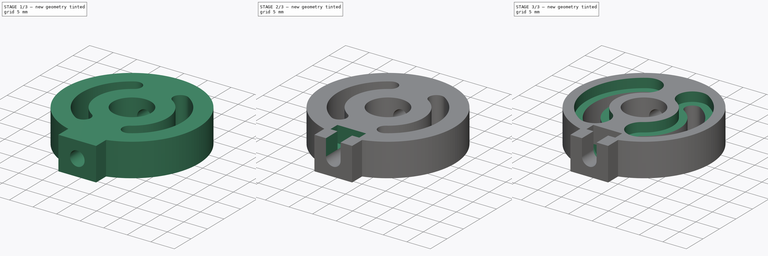
[diagram: build sequence overview — one tinted view per stage of 3, left to right]
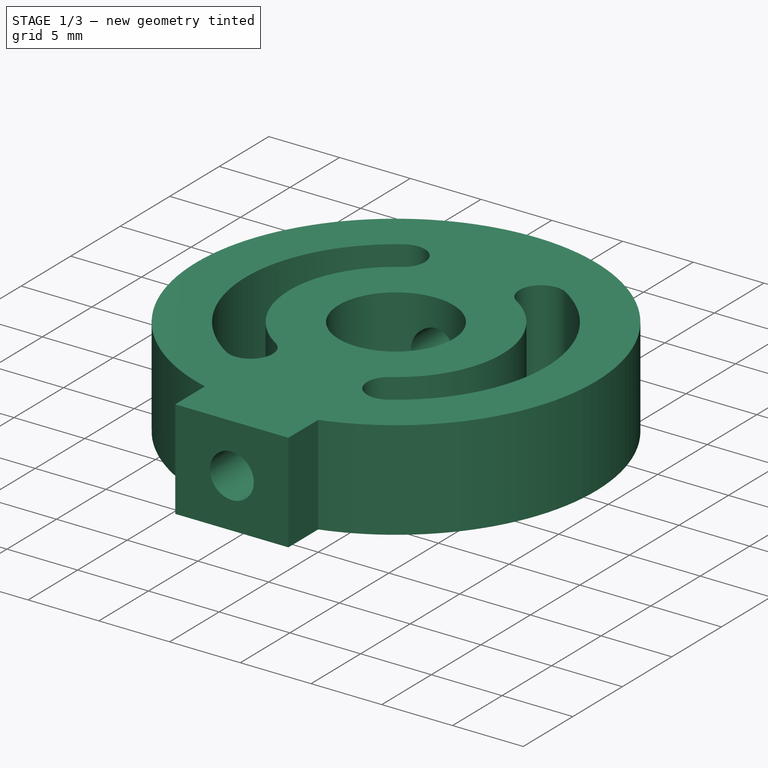
[diagram: stage 1 of 3 — iso view after this stage's code; geometry added in this stage tinted green]
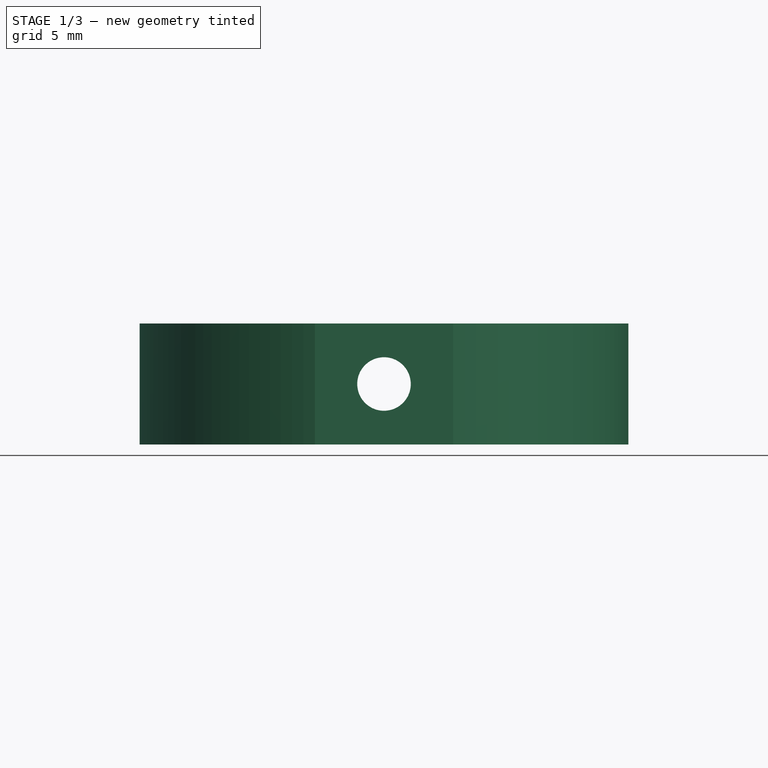
[diagram: stage 1 of 3 — front view after this stage's code; geometry added in this stage tinted green]
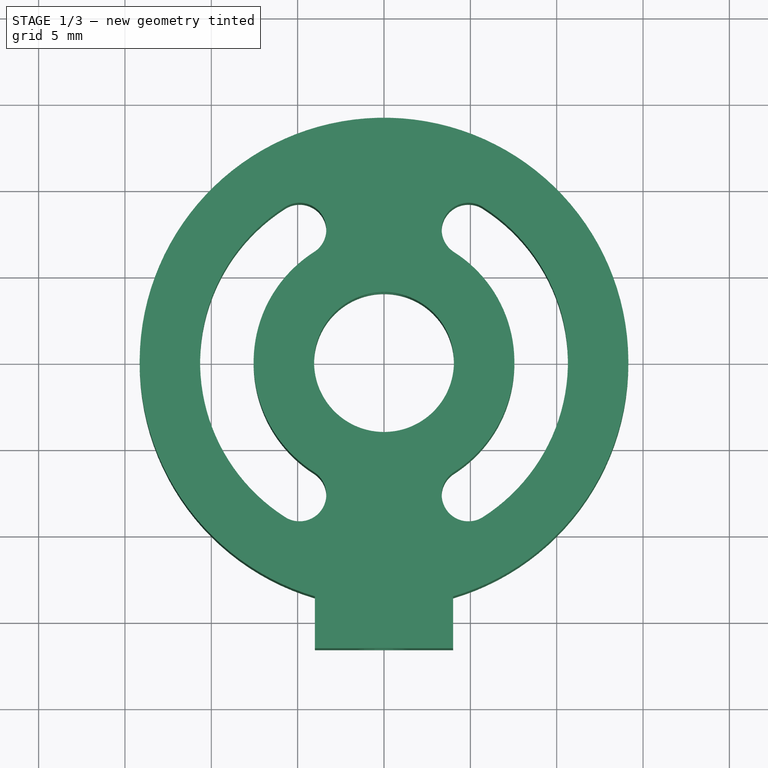
[diagram: stage 1 of 3 — top view after this stage's code; geometry added in this stage tinted green]
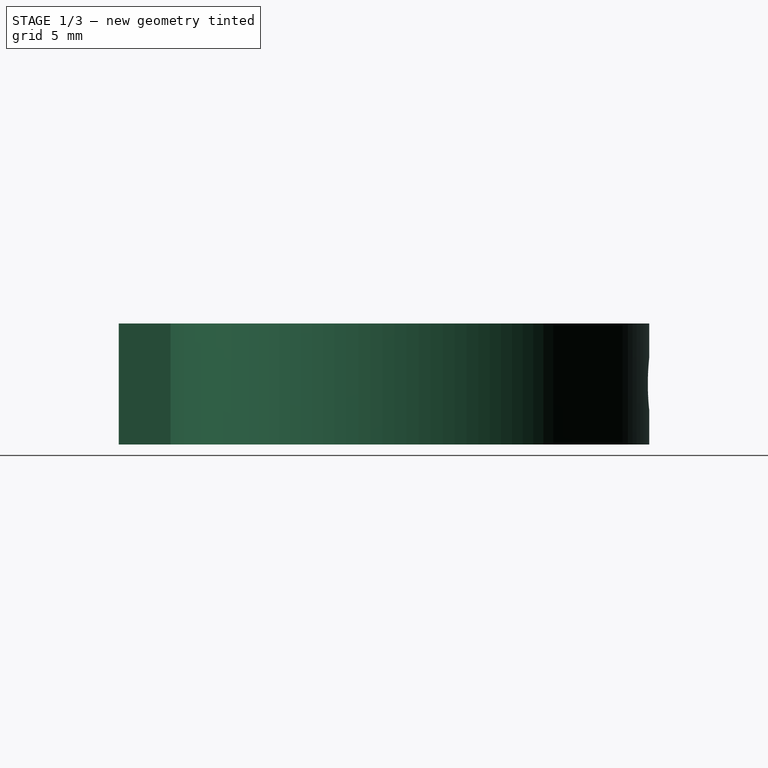
[diagram: stage 1 of 3 — right view after this stage's code; geometry added in this stage tinted green]
FCSTD DOCUMENT  (FreeCAD 0.16RUnknown)
Label: joint-i.010.top.screws
License: All rights reserved
LicenseURL: http://en.wikipedia.org/wiki/All_rights_reserved
objects: Sketcher::SketchObject×5, PartDesign::Pocket×4, Part::Extrusion×1
note: 14 computed .brp shape members not serialized (recipe doc carries the construction recipe); baked Part::Feature solids carry a one-line shape summary decoded from their .brp

FEATURE [Sketcher::SketchObject] Sketch
  sketch-geometry (29):
    g0: Circle CenterX=0 CenterY=0 CenterZ=0 NormalX=0 NormalY=0 NormalZ=1 Radius=4.05
    g1: ArcOfCircle CenterX=0 CenterY=0 CenterZ=0 NormalX=0 NormalY=0 NormalZ=1 Radius=14.15 StartAngle=4.99898 EndAngle=10.709
    g2: ArcOfCircle CenterX=0 CenterY=0 CenterZ=0 NormalX=0 NormalY=0 NormalZ=1 Radius=7.55 StartAngle=2.13803 EndAngle=4.14516
    g3: ArcOfCircle CenterX=0 CenterY=0 CenterZ=0 NormalX=0 NormalY=0 NormalZ=1 Radius=10.65 StartAngle=2.13803 EndAngle=4.14516
    g4: ArcOfCircle CenterX=0 CenterY=0 CenterZ=0 NormalX=0 NormalY=0 NormalZ=1 Radius=7.55 StartAngle=5.27962 EndAngle=7.28675
    g5: ArcOfCircle CenterX=0 CenterY=0 CenterZ=0 NormalX=0 NormalY=0 NormalZ=1 Radius=10.65 StartAngle=5.27962 EndAngle=7.28675
    g6: ArcOfCircle [constr] CenterX=0 CenterY=0 CenterZ=0 NormalX=0 NormalY=0 NormalZ=1 Radius=7.55 StartAngle=1.00356 EndAngle=2.13803
    g7: ArcOfCircle [constr] CenterX=0 CenterY=0 CenterZ=0 NormalX=0 NormalY=0 NormalZ=1 Radius=10.65 StartAngle=1.00356 EndAngle=2.13803
    g8: ArcOfCircle [constr] CenterX=0 CenterY=0 CenterZ=0 NormalX=0 NormalY=0 NormalZ=1 Radius=7.55 StartAngle=4.14516 EndAngle=5.27962
    g9: ArcOfCircle [constr] CenterX=0 CenterY=0 CenterZ=0 NormalX=0 NormalY=0 NormalZ=1 Radius=10.65 StartAngle=4.14516 EndAngle=5.27962
    g10: LineSegment [constr] StartX=-7.60279 StartY=11.934 StartZ=0 EndX=-5.72224 EndY=8.98212 EndZ=0
    g11: LineSegment [constr] StartX=-5.72224 StartY=8.98212 StartZ=0 EndX=-4.05661 EndY=6.36761 EndZ=0
    g12: LineSegment [constr] StartX=-4.05661 StartY=6.36761 StartZ=0 EndX=-2.17606 EndY=3.41574 EndZ=0
    g13: LineSegment [constr] StartX=-2.17606 StartY=3.41574 StartZ=0 EndX=0 EndY=0 EndZ=0
    g14: LineSegment [constr] StartX=0 StartY=0 StartZ=0 EndX=4.05661 EndY=-6.36761 EndZ=0
    g15: LineSegment [constr] StartX=4.05661 StartY=-6.36761 StartZ=0 EndX=5.72224 EndY=-8.98212 EndZ=0
    g16: LineSegment [constr] StartX=5.72224 StartY=8.98212 StartZ=0 EndX=4.05661 EndY=6.36761 EndZ=0
    g17: LineSegment [constr] StartX=4.05661 StartY=6.36761 StartZ=0 EndX=0 EndY=0 EndZ=0
    g18: LineSegment [constr] StartX=0 StartY=0 StartZ=0 EndX=-4.05661 EndY=-6.36761 EndZ=0
    g19: LineSegment [constr] StartX=-4.05661 StartY=-6.36761 StartZ=0 EndX=-5.72224 EndY=-8.98212 EndZ=0
    g20: LineSegment [constr] StartX=-5.72224 StartY=8.98212 StartZ=0 EndX=5.72224 EndY=8.98212 EndZ=0
    g21: ArcOfCircle CenterX=-4.88943 CenterY=7.67486 CenterZ=0 NormalX=0 NormalY=0 NormalZ=1 Radius=1.55 StartAngle=5.27962 EndAngle=8.42121
    g22: ArcOfCircle CenterX=4.88943 CenterY=7.67486 CenterZ=0 NormalX=0 NormalY=0 NormalZ=1 Radius=1.55 StartAngle=1.00356 EndAngle=4.14516
    g23: ArcOfCircle CenterX=-4.88943 CenterY=-7.67486 CenterZ=0 NormalX=0 NormalY=0 NormalZ=1 Radius=1.55 StartAngle=4.14516 EndAngle=7.28675
    g24: ArcOfCircle CenterX=4.88943 CenterY=-7.67486 CenterZ=0 NormalX=0 NormalY=0 NormalZ=1 Radius=1.55 StartAngle=2.13803 EndAngle=5.27962
    g25: LineSegment StartX=-4 StartY=-13.5729 StartZ=0 EndX=-4 EndY=-16.5729 EndZ=0
    g26: LineSegment StartX=-4 StartY=-16.5729 StartZ=0 EndX=4 EndY=-16.5729 EndZ=0
    g27: LineSegment StartX=4 StartY=-16.5729 StartZ=0 EndX=4 EndY=-13.5729 EndZ=0
    g28: LineSegment [constr] StartX=-4 StartY=-13.5729 StartZ=0 EndX=4 EndY=-13.5729 EndZ=0
  constraints (80):
    c: Coincident(g0,g1)
    c: Coincident(g0,g2)
    c: Coincident(g0,g3)
    c: Coincident(g0,g4)
    c: Coincident(g0,g5)
    c: Coincident(g0,g6)
    c: Coincident(g0,g7)
    c: Coincident(g0,g8)
    c: Coincident(g0,g9)
    c: Coincident(g0,g-1)
    c: Coincident(g3,g7)
    c: Coincident(g2,g6)
    c: Coincident(g4,g6)
    c: Coincident(g5,g7)
    c: Coincident(g2,g8)
    c: Coincident(g3,g9)
    c: Coincident(g5,g9)
    c: Coincident(g4,g8)
    c: Coincident(g10,g11)
    c: Coincident(g11,g12)
    c: Coincident(g12,g13)
    c: Coincident(g13,g14)
    c: Coincident(g14,g15)
    c: Coincident(g16,g17)
    c: Coincident(g17,g18)
    c: Coincident(g18,g19)
    c: Coincident(g3,g19)
    c: Coincident(g2,g18)
    c: Coincident(g4,g14)
    c: Coincident(g5,g15)
    c: Coincident(g0,g13)
    c: Coincident(g0,g17)
    c: Coincident(g2,g11)
    c: Coincident(g3,g10)
    c: Coincident(g5,g16)
    c: Coincident(g4,g16)
    c: PointOnObject(g12,g0)
    c: PointOnObject(g10,g1)
    c: Parallel(g10,g11)
    c: Parallel(g11,g12)
    c: Parallel(g12,g13)
    c: Parallel(g13,g15)
    c: Parallel(g15,g14)
    c: Parallel(g19,g18)
    c: Parallel(g18,g17)
    c: Parallel(g17,g16)
    c: Horizontal(g20)
    c: Coincident(g5,g20)
    c: Coincident(g3,g20)
    c: Angle(g16,g11) = 1.13446
    c: Equal(g10,g12)
    c: Radius(g0) = 4.05
    c: Distance(g10) = 3.5
    c: Distance(g11) = 3.1
    c: Coincident(g3,g23)
    c: Coincident(g2,g23)
    c: Coincident(g4,g24)
    c: Coincident(g5,g24)
    c: PointOnObject(g24,g15)
    c: PointOnObject(g23,g19)
    c: Coincident(g3,g21)
    c: Coincident(g2,g21)
    c: Coincident(g4,g22)
    c: Coincident(g5,g22)
    c: PointOnObject(g22,g16)
    c: PointOnObject(g21,g11)
    c: Vertical(g25)
    c: Coincident(g25,g26)
    c: Horizontal(g26)
    c: Coincident(g26,g27)
    c: Vertical(g27)
    c: PointOnObject(g28,g1)
    c: PointOnObject(g28,g1)
    c: Horizontal(g28)
    c: DistanceX(g26,g26) = 8
    c: DistanceY(g27,g28) = 3
    c: Coincident(g1,g27)
    c: Coincident(g1,g25)
    c: Coincident(g1,g28)
    c: Coincident(g1,g28)
FEATURE [Part::Extrusion] Extrude
  Base = -> Sketch
  Dir = (0,0,7)
  Solid = true
FEATURE [Sketcher::SketchObject] Sketch001
  ExternalGeometry = -> [Extrude]
  Placement = pos=(0,-16.5729,0) rot=(1,0,0;1.5708rad)
  Support = -> Extrude [Face3]
  sketch-geometry (3):
    g0: LineSegment [constr] StartX=-4 StartY=7 StartZ=0 EndX=0 EndY=3.5 EndZ=0
    g1: LineSegment [constr] StartX=0 StartY=3.5 StartZ=0 EndX=4 EndY=0 EndZ=0
    g2: Circle CenterX=0 CenterY=3.5 CenterZ=0 NormalX=0 NormalY=0 NormalZ=1 Radius=1.55
  constraints (7):
    c: Coincident(g0,g1)
    c: Coincident(g0,g-3)
    c: Coincident(g1,g-4)
    c: Equal(g1,g0)
    c: Parallel(g1,g0)
    c: Coincident(g0,g2)
    c: Radius(g2) = 1.55
FEATURE [PartDesign::Pocket] Pocket
  Length = 0
  Sketch = -> Sketch001
  Type = 1
  UpToFace = -> Extrude [Face13]
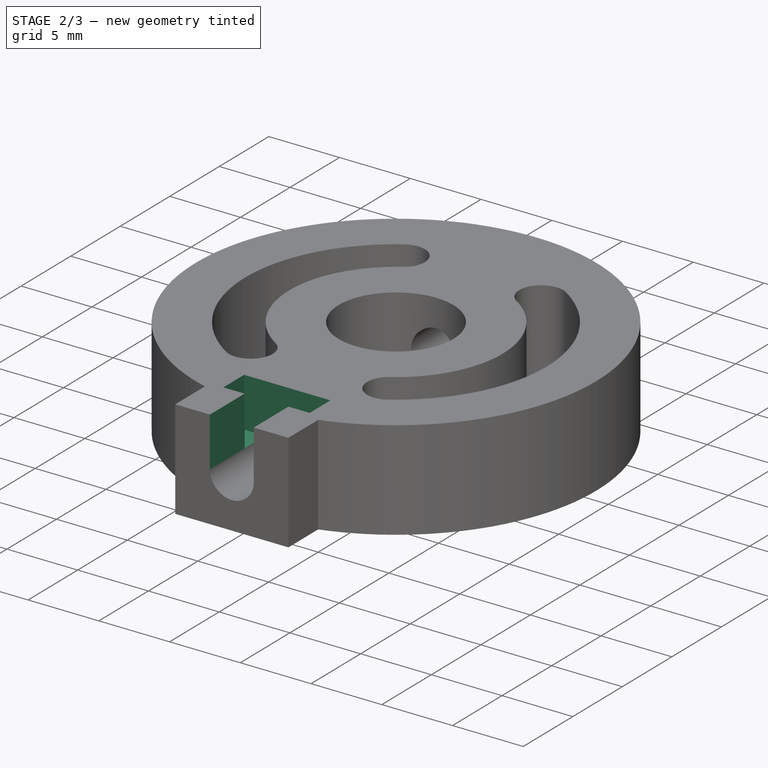
[diagram: stage 2 of 3 — iso view after this stage's code; geometry added in this stage tinted green]
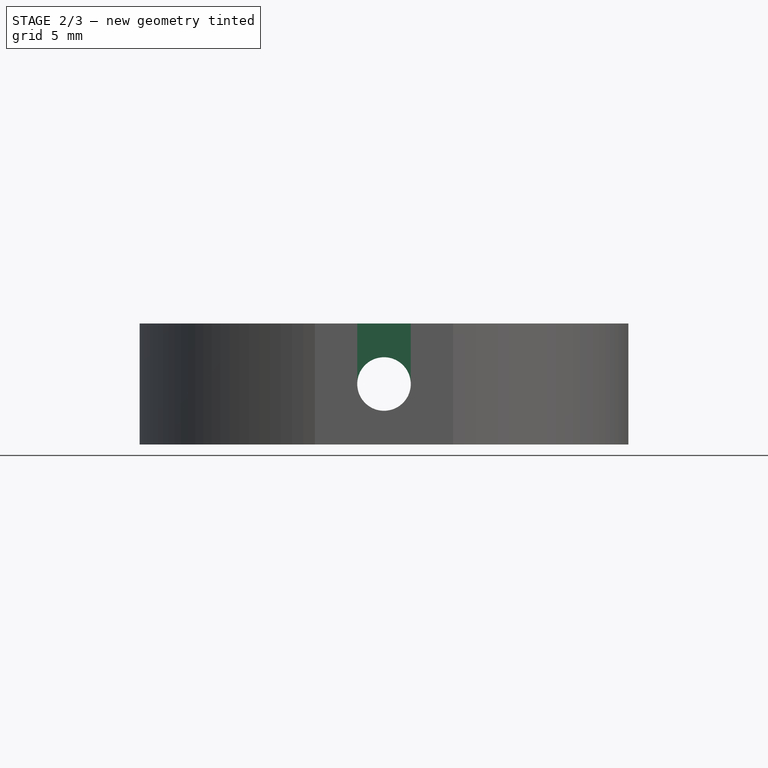
[diagram: stage 2 of 3 — front view after this stage's code; geometry added in this stage tinted green]
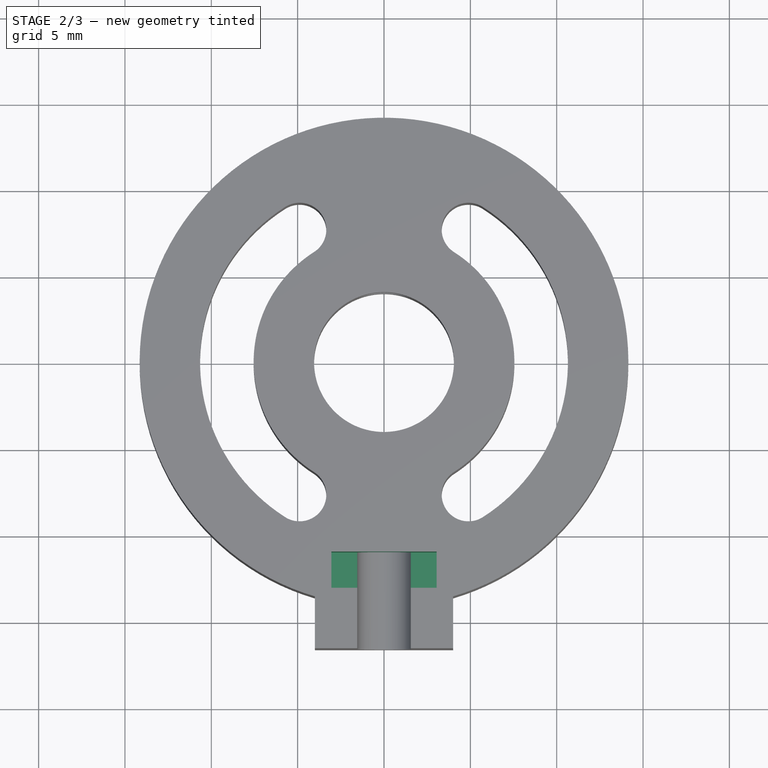
[diagram: stage 2 of 3 — top view after this stage's code; geometry added in this stage tinted green]
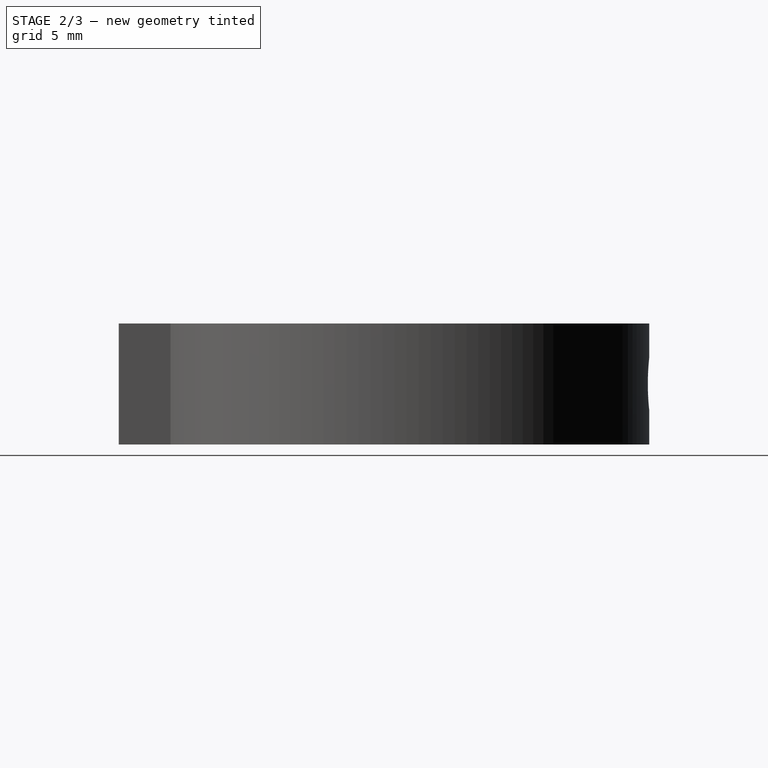
[diagram: stage 2 of 3 — right view after this stage's code; geometry added in this stage tinted green]
FEATURE [Sketcher::SketchObject] Sketch002
  ExternalGeometry = -> [Pocket]
  Placement = pos=(0,0,7) rot=(0,0,1;0rad)
  Support = -> Pocket [Face4]
  sketch-geometry (11):
    g0: GeomPoint [constr] X=5.02511e-07 Y=-12.0229 Z=0
    g1: LineSegment StartX=-3.05 StartY=-10.9729 StartZ=0 EndX=-3.05 EndY=-13.0729 EndZ=0
    g2: LineSegment StartX=-3.05 StartY=-13.0729 StartZ=0 EndX=-1.55 EndY=-13.0729 EndZ=0
    g3: LineSegment StartX=-1.55 StartY=-13.0729 StartZ=0 EndX=-1.55 EndY=-16.5729 EndZ=0
    g4: LineSegment StartX=-1.55 StartY=-16.5729 StartZ=0 EndX=1.55 EndY=-16.5729 EndZ=0
    g5: LineSegment StartX=1.55 StartY=-16.5729 StartZ=0 EndX=1.55 EndY=-13.0729 EndZ=0
    g6: LineSegment StartX=1.55 StartY=-13.0729 StartZ=0 EndX=3.05 EndY=-13.0729 EndZ=0
    g7: LineSegment StartX=3.05 StartY=-13.0729 StartZ=0 EndX=3.05 EndY=-10.9729 EndZ=0
    g8: LineSegment StartX=3.05 StartY=-10.9729 StartZ=0 EndX=-3.05 EndY=-10.9729 EndZ=0
    g9: LineSegment [constr] StartX=-3.05 StartY=-13.0729 StartZ=0 EndX=5.02511e-07 EndY=-12.0229 EndZ=0
    g10: LineSegment [constr] StartX=5.02511e-07 StartY=-12.0229 StartZ=0 EndX=3.05 EndY=-10.9729 EndZ=0
  constraints (30):
    c: Vertical(g1)
    c: Coincident(g1,g2)
    c: Horizontal(g2)
    c: Coincident(g2,g3)
    c: Vertical(g3)
    c: Coincident(g3,g4)
    c: Horizontal(g4)
    c: Coincident(g4,g5)
    c: Vertical(g5)
    c: Coincident(g5,g6)
    c: Horizontal(g6)
    c: Coincident(g6,g7)
    c: Vertical(g7)
    c: Coincident(g7,g8)
    c: Horizontal(g8)
    c: Coincident(g1,g8)
    c: Equal(g1,g7)
    c: Equal(g3,g5)
    c: Equal(g2,g6)
    c: DistanceX(g8,g8) = 6.1
    c: DistanceY(g7,g7) = 2.1
    c: DistanceX(g4,g4) = 3.1
    c: Coincident(g9,g10)
    c: Coincident(g7,g10)
    c: Coincident(g1,g9)
    c: Equal(g9,g10)
    c: Parallel(g9,g10)
    c: Coincident(g9,g0)
    c: PointOnObject(g4,g-4)
    c: DistanceY(g-3,g1) = 0.5
FEATURE [PartDesign::Pocket] Pocket001
  Length = 3.5
  Sketch = -> Sketch002
  Type = 0
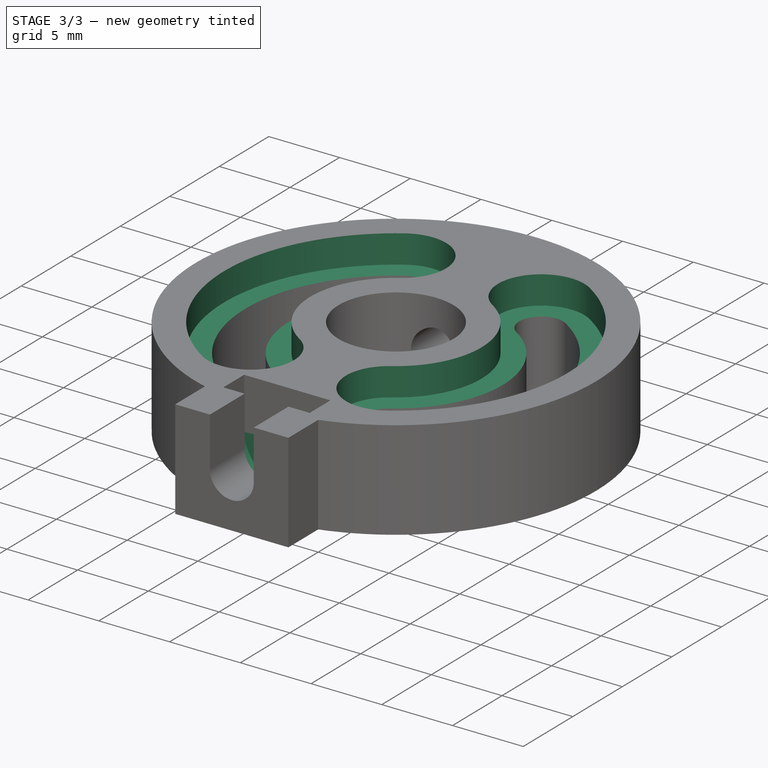
[diagram: stage 3 of 3 — iso view after this stage's code; geometry added in this stage tinted green]
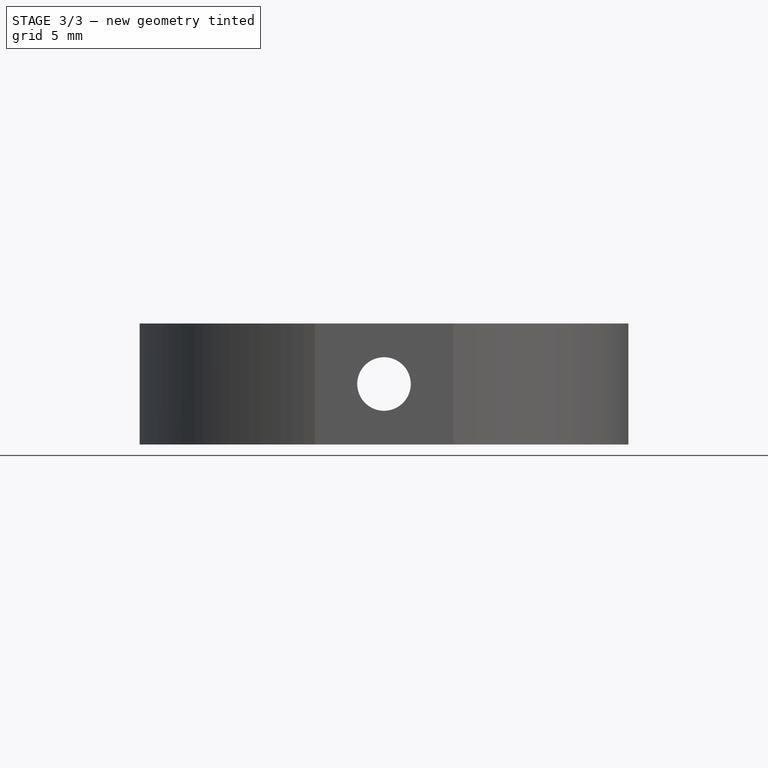
[diagram: stage 3 of 3 — front view after this stage's code; geometry added in this stage tinted green]
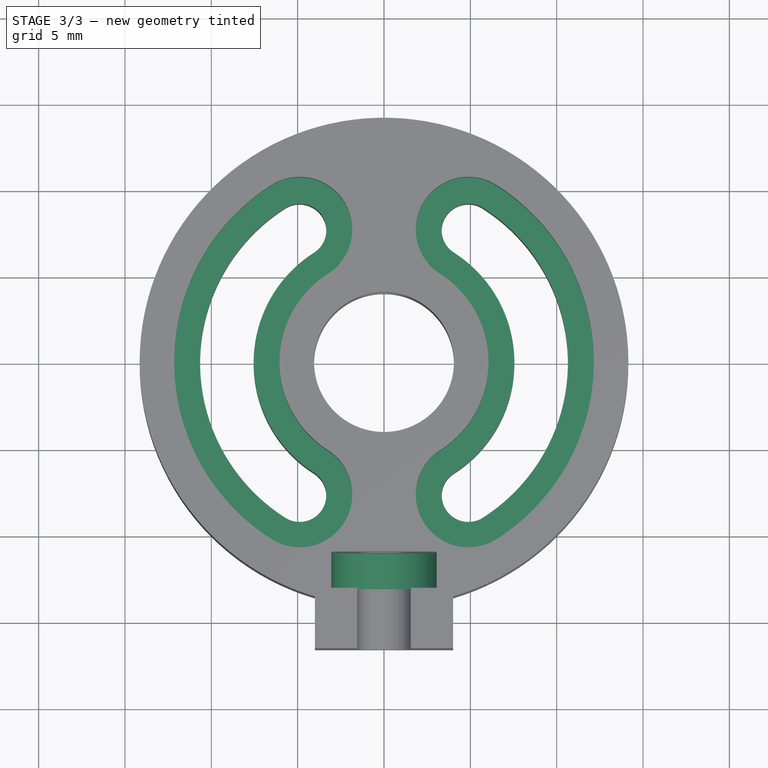
[diagram: stage 3 of 3 — top view after this stage's code; geometry added in this stage tinted green]
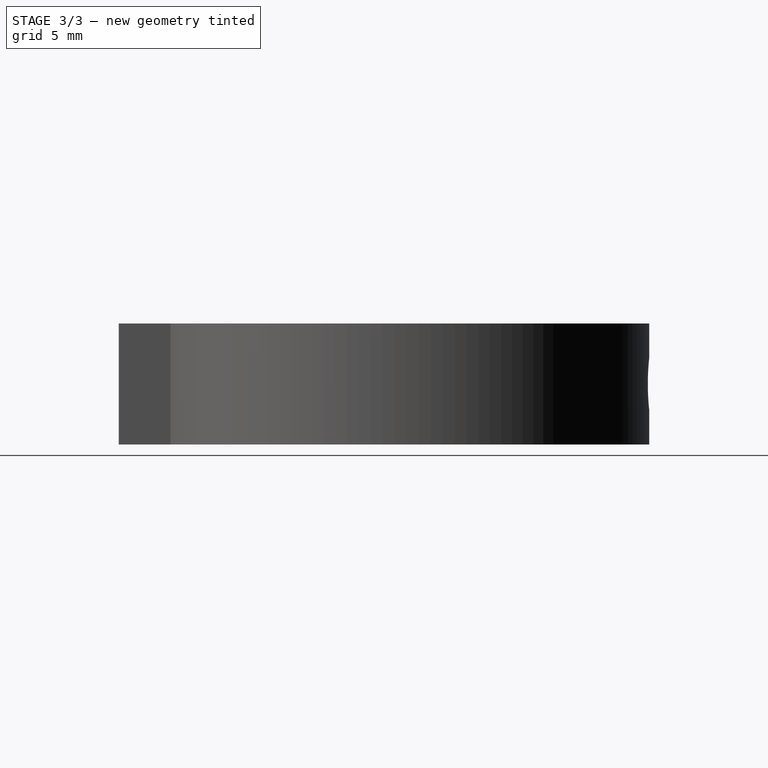
[diagram: stage 3 of 3 — right view after this stage's code; geometry added in this stage tinted green]
FEATURE [Sketcher::SketchObject] Sketch003
  ExternalGeometry = -> [Pocket001]
  Placement = pos=(0,-10.9729,0) rot=(1,0,0;1.5708rad)
  Support = -> Pocket001 [Face20]
  sketch-geometry (2):
    g0: ArcOfCircle CenterX=0 CenterY=3.5 CenterZ=0 NormalX=0 NormalY=0 NormalZ=1 Radius=3.05 StartAngle=3.14159 EndAngle=6.28319
    g1: LineSegment StartX=-3.05 StartY=3.5 StartZ=0 EndX=3.05 EndY=3.5 EndZ=0
  constraints (5):
    c: Horizontal(g1)
    c: Coincident(g0,g-4)
    c: Coincident(g0,g1)
    c: Coincident(g0,g-5)
    c: Coincident(g0,g1)
FEATURE [PartDesign::Pocket] Pocket002
  Length = 0
  Sketch = -> Sketch003
  Type = 3
  UpToFace = -> Pocket001 [Face22]
FEATURE [Sketcher::SketchObject] Sketch004
  ExternalGeometry = -> [Pocket002]
  Placement = pos=(0,0,7) rot=(0,0,1;0rad)
  Support = -> Pocket002 [Face4]
  sketch-geometry (20):
    g0: LineSegment [constr] StartX=-6.52819 StartY=10.2472 StartZ=0 EndX=-5.72224 EndY=8.98212 EndZ=0
    g1: LineSegment [constr] StartX=-5.72224 StartY=8.98212 StartZ=0 EndX=-4.05661 EndY=6.36761 EndZ=0
    g2: LineSegment [constr] StartX=-4.05661 StartY=6.36761 StartZ=0 EndX=-3.25066 EndY=5.10252 EndZ=0
    g3: LineSegment [constr] StartX=3.25066 StartY=5.10252 StartZ=0 EndX=4.05661 EndY=6.36761 EndZ=0
    g4: LineSegment [constr] StartX=4.05661 StartY=6.36761 StartZ=0 EndX=5.72224 EndY=8.98212 EndZ=0
    g5: LineSegment [constr] StartX=5.72224 StartY=8.98212 StartZ=0 EndX=6.52819 EndY=10.2472 EndZ=0
    g6: LineSegment [constr] StartX=-6.52819 StartY=-10.2472 StartZ=0 EndX=-5.72224 EndY=-8.98212 EndZ=0
    g7: LineSegment [constr] StartX=-5.72224 StartY=-8.98212 StartZ=0 EndX=-4.05661 EndY=-6.36761 EndZ=0
    g8: LineSegment [constr] StartX=-4.05661 StartY=-6.36761 StartZ=0 EndX=-3.25066 EndY=-5.10252 EndZ=0
    g9: LineSegment [constr] StartX=3.25066 StartY=-5.10252 StartZ=0 EndX=4.05661 EndY=-6.36761 EndZ=0
    g10: LineSegment [constr] StartX=4.05661 StartY=-6.36761 StartZ=0 EndX=5.72224 EndY=-8.98212 EndZ=0
    g11: LineSegment [constr] StartX=5.72224 StartY=-8.98212 StartZ=0 EndX=6.52819 EndY=-10.2472 EndZ=0
    g12: ArcOfCircle CenterX=-4.88943 CenterY=7.67486 CenterZ=0 NormalX=0 NormalY=0 NormalZ=1 Radius=3.05 StartAngle=5.27962 EndAngle=8.42121
    g13: ArcOfCircle CenterX=4.88943 CenterY=7.67486 CenterZ=0 NormalX=0 NormalY=0 NormalZ=1 Radius=3.05 StartAngle=1.00356 EndAngle=4.14516
    g14: ArcOfCircle CenterX=0 CenterY=0 CenterZ=0 NormalX=0 NormalY=0 NormalZ=1 Radius=6.05 StartAngle=2.13803 EndAngle=4.14516
    g15: ArcOfCircle CenterX=0 CenterY=0 CenterZ=0 NormalX=0 NormalY=0 NormalZ=1 Radius=12.15 StartAngle=2.13803 EndAngle=4.14516
    g16: ArcOfCircle CenterX=0 CenterY=0 CenterZ=0 NormalX=0 NormalY=0 NormalZ=1 Radius=6.05 StartAngle=5.27962 EndAngle=7.28675
    g17: ArcOfCircle CenterX=0 CenterY=0 CenterZ=0 NormalX=0 NormalY=0 NormalZ=1 Radius=12.15 StartAngle=5.27962 EndAngle=7.28675
    g18: ArcOfCircle CenterX=4.88943 CenterY=-7.67486 CenterZ=0 NormalX=0 NormalY=0 NormalZ=1 Radius=3.05 StartAngle=2.13803 EndAngle=5.27962
    g19: ArcOfCircle CenterX=-4.88943 CenterY=-7.67486 CenterZ=0 NormalX=0 NormalY=0 NormalZ=1 Radius=3.05 StartAngle=4.14516 EndAngle=7.28675
  constraints (52):
    c: Coincident(g0,g1)
    c: Coincident(g1,g2)
    c: Coincident(g3,g4)
    c: Coincident(g4,g5)
    c: Coincident(g6,g7)
    c: Coincident(g7,g8)
    c: Coincident(g9,g10)
    c: Coincident(g10,g11)
    c: Coincident(g7,g-5)
    c: Coincident(g6,g-5)
    c: Coincident(g9,g-6)
    c: Coincident(g10,g-6)
    c: Coincident(g3,g-4)
    c: Coincident(g4,g-4)
    c: Coincident(g1,g-3)
    c: Coincident(g0,g-3)
    c: Parallel(g0,g1)
    c: Parallel(g1,g2)
    c: Parallel(g5,g4)
    c: Parallel(g4,g3)
    c: Parallel(g9,g10)
    c: Parallel(g10,g11)
    c: Parallel(g8,g7)
    c: Parallel(g7,g6)
    c: Equal(g0,g2)
    c: Equal(g5,g3)
    c: Equal(g5,g0)
    c: Coincident(g12,g-3)
    c: Coincident(g13,g-4)
    c: Coincident(g19,g-5)
    c: Coincident(g18,g-6)
    c: Coincident(g14,g15)
    c: Coincident(g14,g16)
    c: Coincident(g14,g17)
    c: Coincident(g14,g-1)
    c: Coincident(g0,g12)
    c: Coincident(g0,g15)
    c: Coincident(g2,g12)
    c: Coincident(g2,g14)
    c: Coincident(g3,g13)
    c: Coincident(g3,g16)
    c: Coincident(g5,g13)
    c: Coincident(g5,g17)
    c: Coincident(g8,g14)
    c: Coincident(g8,g19)
    c: Coincident(g19,g15)
    c: Coincident(g15,g6)
    c: Distance(g0,g2) = 6.1
    c: Coincident(g9,g16)
    c: Coincident(g9,g18)
    c: Coincident(g18,g17)
    c: Coincident(g17,g11)
FEATURE [PartDesign::Pocket] Pocket003
  Length = 2
  Sketch = -> Sketch004
  Type = 0
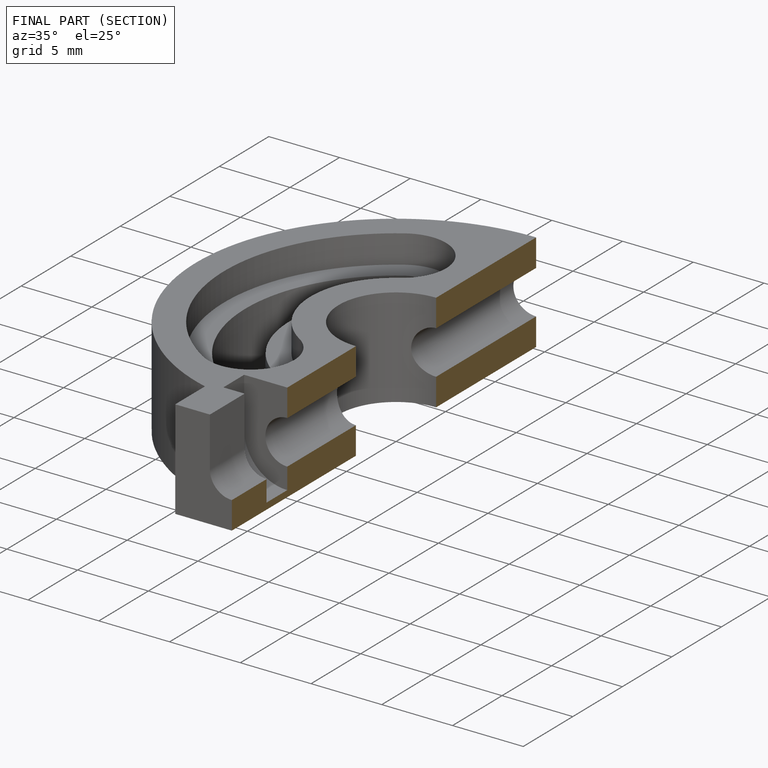
[diagram: finished part — half-section view (interior)]
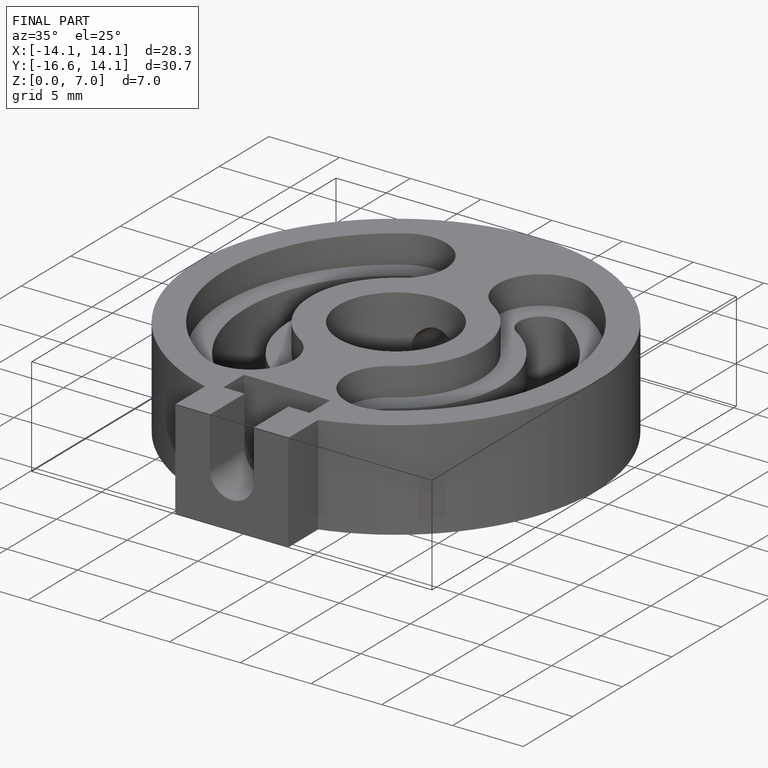
[diagram: finished part — iso view with bounding-box wireframe]
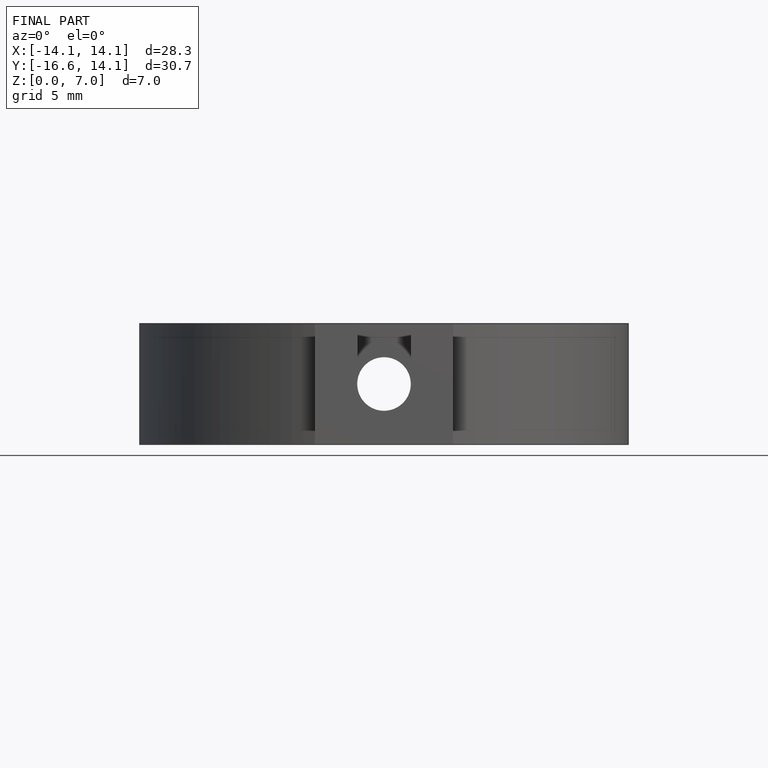
[diagram: finished part — front view with bounding-box wireframe]
